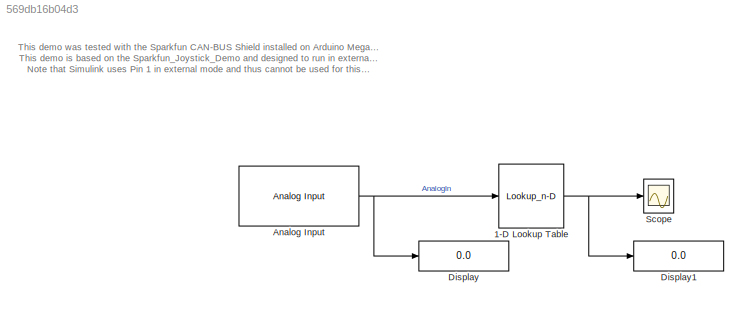
MODEL slx_569db16b04d3
KIND model
CONFIG AbsTol = auto
CONFIG EnableMultiTasking = on
CONFIG FixedStep = .25
CONFIG MaxStep = auto
CONFIG MinStep = auto
CONFIG RelTol = 1e-3
CONFIG SampleTimeConstraint = Unconstrained
CONFIG Solver = FixedStepAuto
CONFIG SolverName = FixedStepAuto
CONFIG StartTime = 0.0
CONFIG StopTime = inf
BLOCK [Lookup_n-D] 1-D Lookup Table
  BreakpointsForDimension1 = [0 1023]
  ExtrapMethod = Clip
  InternalRulePriority = Speed
  NumberOfTableDimensions = 1
  OutDataTypeStr = int16
  Ports = [1, 1]
  RndMeth = Simplest
  Table = [-180 180]
  UseLastTableValue = on
BLOCK [Reference] Analog Input  REF=arduinolib/Analog Input
  Ports = [0, 1]
  SourceBlock = arduinolib/Analog Input
  SourceProductBaseCode = ARDUINO
  SourceProductName = Simulink Support Package for Arduino Hardware
  SourceType = Arduino Analog Input
BLOCK [Display] Display
  Decimation = 1
  Ports = [1]
BLOCK [Display] Display1
  Decimation = 1
  Ports = [1]
BLOCK [Scope] Scope
  Floating = off
  NumInputPorts = 1
  Ports = [1]
  ScopeSpecificationString = Simulink.scopes.TimeScopeBlockCfg('CurrentConfiguration', extmgr.ConfigurationSet(extmgr.Configuration('Core','General UI',true),extmgr.Configuration('Core','Source UI',true),extmgr.Configuration('Sources','WiredSimulink',true),extmgr.Configuration('Visuals','Time Domain',true,'SerializedDisplays',{struct('MinYLimReal','-58.25','MaxYLimReal','84.25','YLabelReal','','MinYLimMag','0.00000','MaxYLimM...<+1352ch>
ANNOTATION (root): This demo was tested with the Sparkfun CAN-BUS Shield installed on Arduino Mega 2560. This demo is based on the Sparkfun_Joystick_Demo and designed to run in external mode. Note that Simulink uses Pin 1 in external mode and thus cannot be used for this demo.
NET 1-D Lookup Table:1 -> Display1:1, Scope:1
NET Analog Input:1 -> 1-D Lookup Table:1, Display:1
note: NET lines group one-source signal fan-out (src -> all destinations, sorted); 1:1 wires keep LINE
